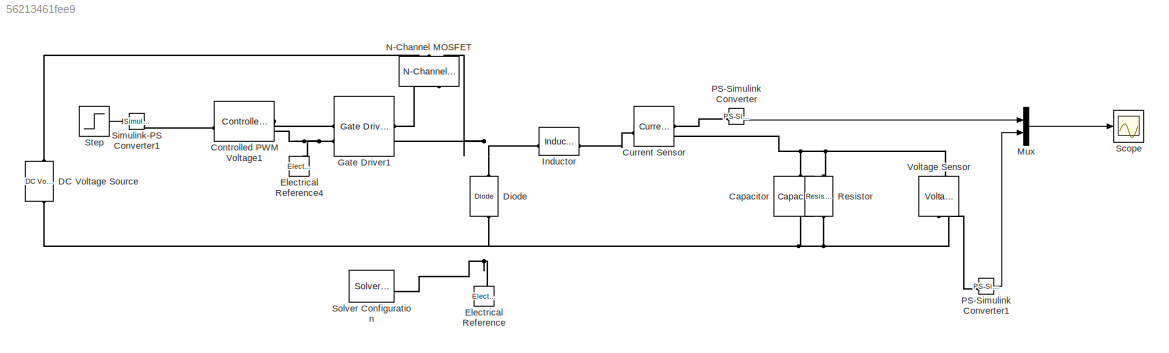
MODEL slx_56213461fee9
KIND model
CONFIG AbsTol = auto
CONFIG EnableMultiTasking = off
CONFIG FixedStep = auto
CONFIG MaxStep = auto
CONFIG MinStep = auto
CONFIG RelTol = 1e-3
CONFIG SampleTimeConstraint = Unconstrained
CONFIG SolverName = VariableStepAuto
CONFIG StartTime = 0.0
CONFIG StopTime = 0.05
BLOCK [Reference] Capacitor  REF=fl_lib/Electrical/Electrical Elements/Capacitor
  NameLocation = left
  SourceBlock = fl_lib/Electrical/Electrical Elements/Capacitor
  SourceType = Capacitor
BLOCK [Reference] Controlled PWM Voltage1  REF=ee_lib/Integrated Circuits/Controlled PWM
Voltage
  SourceBlock = ee_lib/Integrated Circuits/Controlled PWM\nVoltage
  SourceType = Controlled PWM\nVoltage
BLOCK [Reference] Current Sensor  REF=fl_lib/Electrical/Electrical Sensors/Current Sensor
  SourceBlock = fl_lib/Electrical/Electrical Sensors/Current Sensor
  SourceType = Current Sensor
BLOCK [Reference] DC Voltage Source  REF=fl_lib/Electrical/Electrical Sources/DC Voltage Source
  NameLocation = right
  SourceBlock = fl_lib/Electrical/Electrical Sources/DC Voltage Source
  SourceType = DC Voltage Source
BLOCK [Reference] Diode  REF=fl_lib/Electrical/Electrical Elements/Diode
  NameLocation = right
  SourceBlock = fl_lib/Electrical/Electrical Elements/Diode
  SourceType = Diode
BLOCK [Reference] Electrical Reference  REF=fl_lib/Electrical/Electrical Elements/Electrical Reference
  NameLocation = right
  SourceBlock = fl_lib/Electrical/Electrical Elements/Electrical Reference
  SourceType = Electrical Reference
BLOCK [Reference] Electrical Reference4  REF=fl_lib/Electrical/Electrical Elements/Electrical Reference
  SourceBlock = fl_lib/Electrical/Electrical Elements/Electrical Reference
  SourceType = Electrical Reference
BLOCK [Reference] Gate Driver1  REF=ee_lib/Semiconductors &
Converters/Gate Driver
  SourceBlock = ee_lib/Semiconductors &\nConverters/Gate Driver
  SourceType = Gate Driver
BLOCK [Reference] Inductor  REF=fl_lib/Electrical/Electrical Elements/Inductor
  SourceBlock = fl_lib/Electrical/Electrical Elements/Inductor
  SourceType = Inductor
BLOCK [Mux] Mux
  DisplayOption = bar
  Inputs = 2
BLOCK [Reference] N-Channel MOSFET  REF=ee_lib/Semiconductors &
Converters/N-Channel MOSFET
  NameLocation = right
  SourceBlock = ee_lib/Semiconductors &\nConverters/N-Channel MOSFET
  SourceType = N-Channel MOSFET
BLOCK [Reference] PS-Simulink Converter  REF=nesl_utility/PS-Simulink
Converter
  SourceBlock = nesl_utility/PS-Simulink\nConverter
  SourceType = PS-Simulink\nConverter
BLOCK [Reference] PS-Simulink Converter1  REF=nesl_utility/PS-Simulink
Converter
  SourceBlock = nesl_utility/PS-Simulink\nConverter
  SourceType = PS-Simulink\nConverter
BLOCK [Reference] Resistor  REF=fl_lib/Electrical/Electrical Elements/Resistor
  NameLocation = left
  SourceBlock = fl_lib/Electrical/Electrical Elements/Resistor
  SourceType = Resistor
BLOCK [Scope] Scope
  Floating = off
  NumInputPorts = 1
  ScopeSpecificationString = Simulink.scopes.TimeScopeBlockCfg('CurrentConfiguration', extmgr.ConfigurationSet(extmgr.Configuration('Core','General UI',true),extmgr.Configuration('Core','Source UI',true),extmgr.Configuration('Sources','WiredSimulink',true),extmgr.Configuration('Visuals','Time Domain',true,'SerializedDisplays',{struct('MinYLimReal','-2.01638','MaxYLimReal','18.14738','YLabelReal','','MinYLimMag','0.00000','Max...<+1396ch>
BLOCK [Reference] Simulink-PS Converter1  REF=nesl_utility/Simulink-PS
Converter
  SourceBlock = nesl_utility/Simulink-PS\nConverter
  SourceType = Simulink-PS\nConverter
BLOCK [Reference] Solver Configuration  REF=nesl_utility/Solver
Configuration
  SourceBlock = nesl_utility/Solver\nConfiguration
  SourceType = Solver\nConfiguration
BLOCK [Step] Step
  After = 0.5
  SampleTime = 0
  Time = 0
BLOCK [Reference] Voltage Sensor  REF=fl_lib/Electrical/Electrical Sensors/Voltage Sensor
  NameLocation = right
  SourceBlock = fl_lib/Electrical/Electrical Sensors/Voltage Sensor
  SourceType = Voltage Sensor
LINE Mux:1 -> Scope:1
LINE PS-Simulink Converter1:1 -> Mux:2
LINE PS-Simulink Converter:1 -> Mux:1
LINE Step:1 -> Simulink-PS Converter1:1
PNET net1: Capacitor:LConn1 -- Current Sensor:RConn2 -- Resistor:LConn1 -- Voltage Sensor:LConn1
PNET net2: Capacitor:RConn1 -- DC Voltage Source:RConn1 -- Diode:LConn1 -- Electrical Reference:LConn1 -- Resistor:RConn1 -- Solver Configuration:RConn1 -- Voltage Sensor:RConn2
PLINE Controlled PWM Voltage1:LConn1 -- Simulink-PS Converter1:RConn1
PLINE Controlled PWM Voltage1:RConn1 -- Gate Driver1:LConn1
PNET net3: Controlled PWM Voltage1:RConn2 -- Electrical Reference4:LConn1 -- Gate Driver1:LConn2
PLINE Current Sensor:LConn1 -- Inductor:RConn1
PLINE Current Sensor:RConn1 -- PS-Simulink Converter:LConn1
PLINE DC Voltage Source:LConn1 -- N-Channel MOSFET:RConn1
PNET net4: Diode:RConn1 -- Gate Driver1:RConn2 -- Inductor:LConn1 -- N-Channel MOSFET:RConn2
PLINE Gate Driver1:RConn1 -- N-Channel MOSFET:LConn1
PLINE PS-Simulink Converter1:LConn1 -- Voltage Sensor:RConn1
note: PNET lines group multi-terminal physical nets as a canonical sorted terminal list (undirected conserving connections); 2-terminal nets keep the pairwise PLINE form
